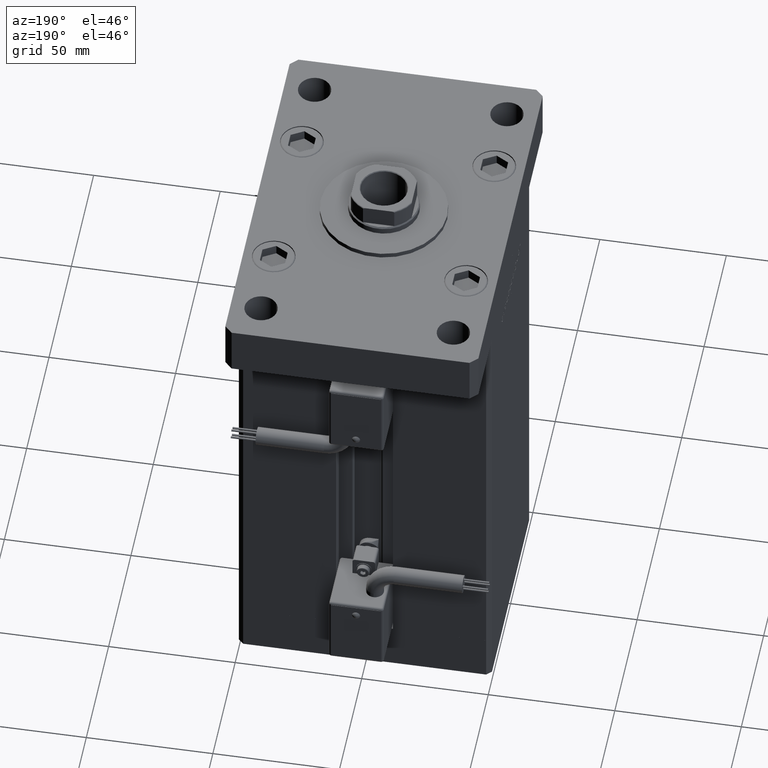
[diagram: clean part render]
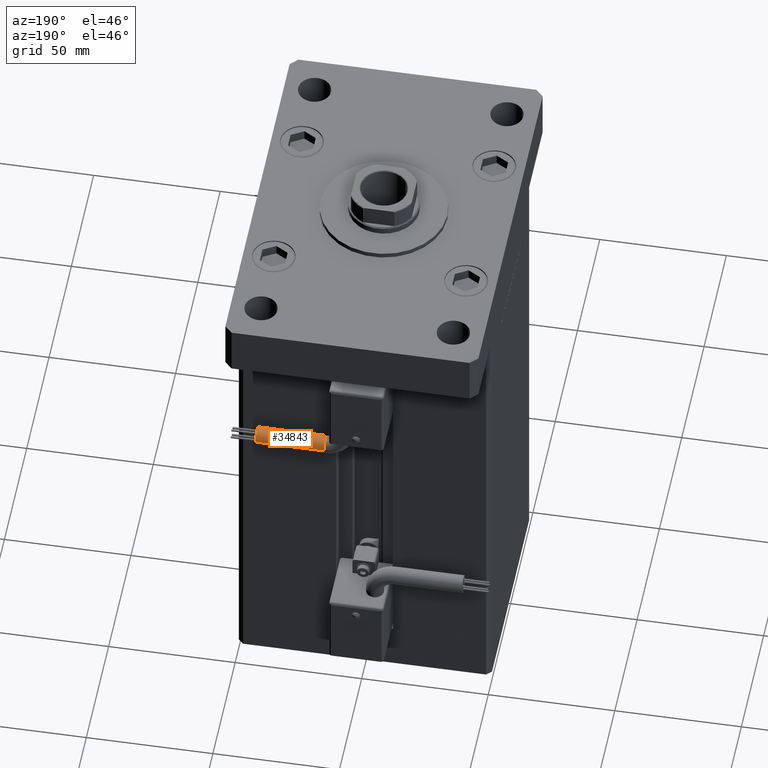
[diagram: same view with one face highlighted and labeled with its STEP entity id]
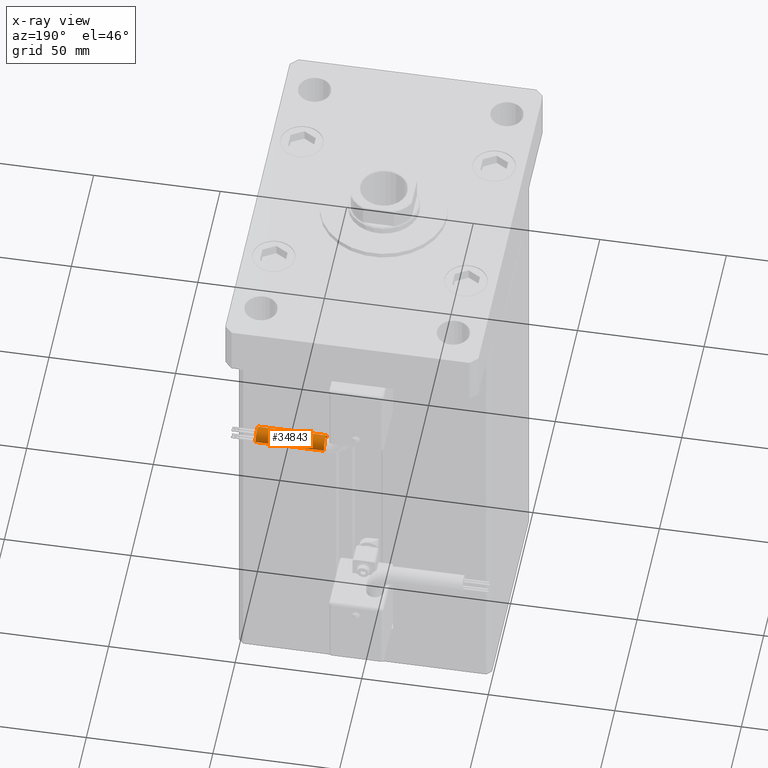
[diagram: x-ray of the same camera — body ghosted, the highlighted face saturated]
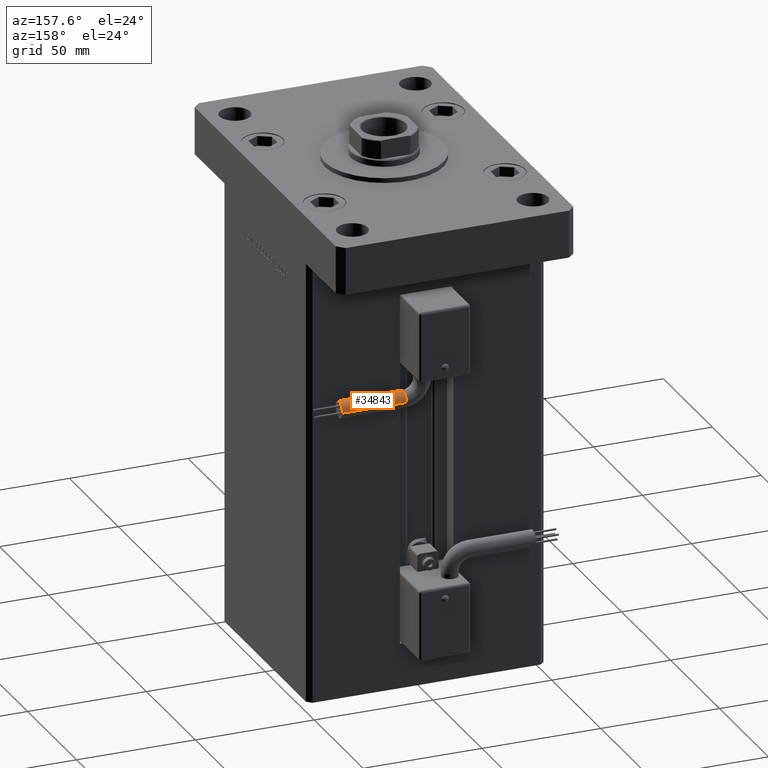
[diagram: same view with one face highlighted and labeled with its STEP entity id]
A machine part, auxiliary view. The second image highlights one B-rep face of the part: STEP entity #34843.
The next image is the same camera in x-ray: the body ghosted, the highlighted face saturated — about 0% of this face is hidden behind the body in this view.
A second angle (auxiliary view) of the same face is appended — the face is thin or edge-on in the first view.
In plain terms, the highlighted cylindrical surface (edge-blend (fillet) strip) has radius 3.5 mm, axis along (1, -0, 0).
Its self-contained STEP definition (entity closure, byte-faithful):
#754 = CARTESIAN_POINT ( 'NONE',  ( 40.80000000000000426, 45.50000000000000711, -65.00000000000000000 ) ) ;
#3712 = EDGE_LOOP ( 'NONE', ( #24876, #26299, #25766, #28959, #20993 ) ) ;
#4654 = DIRECTION ( 'NONE',  ( 0.000000000000000000, 0.000000000000000000, -1.000000000000000000 ) ) ;
#7166 = VERTEX_POINT ( 'NONE', #22996 ) ;
#7533 = DIRECTION ( 'NONE',  ( 1.000000000000000000, 0.000000000000000000, 2.220446049250000002E-16 ) ) ;
#11305 = DIRECTION ( 'NONE',  ( 0.000000000000000000, 0.000000000000000000, -1.000000000000000000 ) ) ;
#11568 = EDGE_CURVE ( 'NONE', #45236, #7166, #35468, .T. ) ;
#13956 = VERTEX_POINT ( 'NONE', #36853 ) ;
#14890 = FACE_OUTER_BOUND ( 'NONE', #3712, .T. ) ;
#14991 = CARTESIAN_POINT ( 'NONE',  ( 13.79999999999999716, 38.50000000000000000, -65.00000000000000000 ) ) ;
#16418 = DIRECTION ( 'NONE',  ( 0.000000000000000000, 0.000000000000000000, -1.000000000000000000 ) ) ;
#17181 = EDGE_CURVE ( 'NONE', #13956, #45236, #52078, .T. ) ;
#17482 = CARTESIAN_POINT ( 'NONE',  ( 13.79999999999999893, 38.50000000000000000, -65.00000000000000000 ) ) ;
#20993 = ORIENTED_EDGE ( 'NONE', *, *, #11568, .F. ) ;
#22996 = CARTESIAN_POINT ( 'NONE',  ( 40.80000000000000426, 38.50000000000000000, -65.00000000000000000 ) ) ;
#23126 = CIRCLE ( 'NONE', #47019, 3.500000000000003109 ) ;
#23910 = AXIS2_PLACEMENT_3D ( 'NONE', #42102, #7533, #11305 ) ;
#24876 = ORIENTED_EDGE ( 'NONE', *, *, #17181, .F. ) ;
#25766 = ORIENTED_EDGE ( 'NONE', *, *, #27046, .T. ) ;
#25863 = CARTESIAN_POINT ( 'NONE',  ( 13.80000000000000071, 45.50000000000000711, -65.00000000000000000 ) ) ;
#26299 = ORIENTED_EDGE ( 'NONE', *, *, #47339, .T. ) ;
#27046 = EDGE_CURVE ( 'NONE', #30726, #45247, #48750, .T. ) ;
#27368 = LINE ( 'NONE', #14991, #51916 ) ;
#28959 = ORIENTED_EDGE ( 'NONE', *, *, #54688, .T. ) ;
#30154 = VECTOR ( 'NONE', #38811, 1000.000000000000000 ) ;
#30726 = VERTEX_POINT ( 'NONE', #32328 ) ;
#31594 = DIRECTION ( 'NONE',  ( -4.956352788505158337E-16, -1.000000000000000000, 0.000000000000000000 ) ) ;
#32328 = CARTESIAN_POINT ( 'NONE',  ( 13.79999999999999893, 41.99999999999999289, -61.50000000000000000 ) ) ;
#34843 = ADVANCED_FACE ( 'NONE', ( #14890 ), #49441, .T. ) ;
#35468 = CIRCLE ( 'NONE', #53871, 3.500000000000003109 ) ;
#36853 = CARTESIAN_POINT ( 'NONE',  ( 13.79999999999999893, 45.50000000000000711, -65.00000000000000000 ) ) ;
#37018 = CARTESIAN_POINT ( 'NONE',  ( 13.79999999999999893, 42.00000000000000000, -65.00000000000000000 ) ) ;
#38811 = DIRECTION ( 'NONE',  ( 1.000000000000000000, -2.599999999999999847E-16, 2.220446049250000002E-16 ) ) ;
#41070 = DIRECTION ( 'NONE',  ( 1.000000000000000000, -2.599999999999999847E-16, 2.220446049250000002E-16 ) ) ;
#41727 = DIRECTION ( 'NONE',  ( 1.000000000000000000, -2.599999999999999847E-16, 2.220446049250000002E-16 ) ) ;
#42102 = CARTESIAN_POINT ( 'NONE',  ( 13.79999999999999893, 42.00000000000000000, -65.00000000000000000 ) ) ;
#43249 = DIRECTION ( 'NONE',  ( 1.000000000000000000, 0.000000000000000000, 2.220446049250000002E-16 ) ) ;
#45236 = VERTEX_POINT ( 'NONE', #754 ) ;
#45247 = VERTEX_POINT ( 'NONE', #17482 ) ;
#47019 = AXIS2_PLACEMENT_3D ( 'NONE', #48167, #43249, #4654 ) ;
#47339 = EDGE_CURVE ( 'NONE', #13956, #30726, #23126, .T. ) ;
#48167 = CARTESIAN_POINT ( 'NONE',  ( 13.79999999999999893, 42.00000000000000000, -65.00000000000000000 ) ) ;
#48750 = CIRCLE ( 'NONE', #23910, 3.500000000000003109 ) ;
#49144 = AXIS2_PLACEMENT_3D ( 'NONE', #37018, #41070, #31594 ) ;
#49441 = CYLINDRICAL_SURFACE ( 'NONE', #49144, 3.500000000000003109 ) ;
#51916 = VECTOR ( 'NONE', #41727, 1000.000000000000000 ) ;
#52078 = LINE ( 'NONE', #25863, #30154 ) ;
#52121 = CARTESIAN_POINT ( 'NONE',  ( 40.80000000000000426, 42.00000000000000000, -65.00000000000000000 ) ) ;
#53871 = AXIS2_PLACEMENT_3D ( 'NONE', #52121, #55578, #16418 ) ;
#54688 = EDGE_CURVE ( 'NONE', #45247, #7166, #27368, .T. ) ;
#55578 = DIRECTION ( 'NONE',  ( 1.000000000000000000, 0.000000000000000000, 2.220446049250000002E-16 ) ) ;